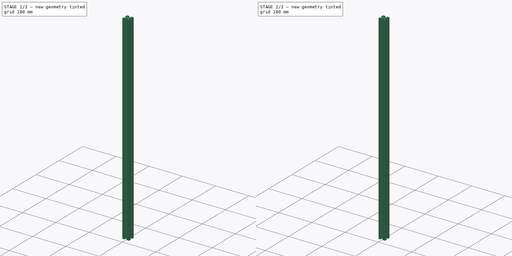
[diagram: build sequence overview — one tinted view per stage of 2, left to right]
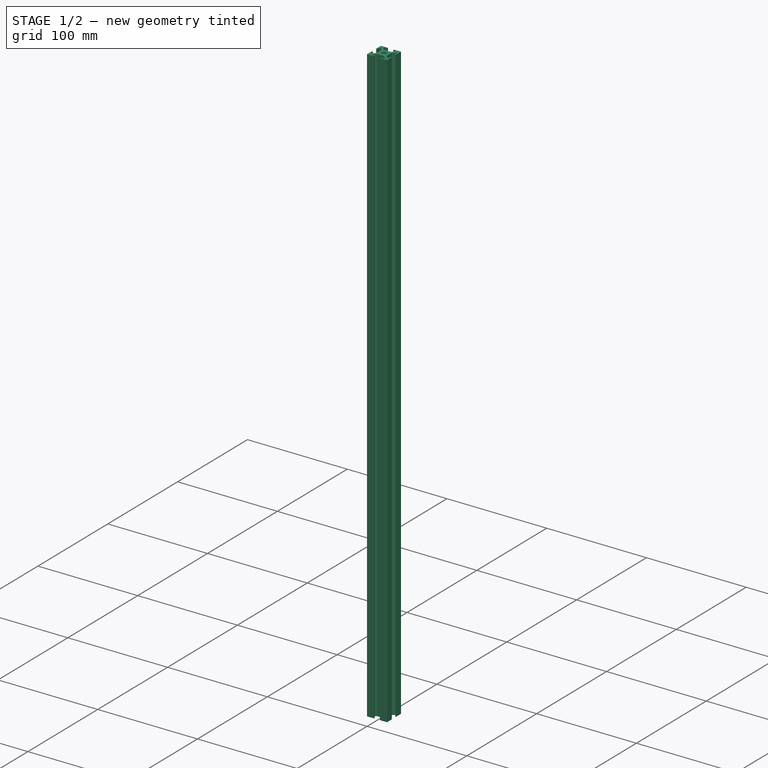
[diagram: stage 1 of 2 — iso view after this stage's code; geometry added in this stage tinted green]
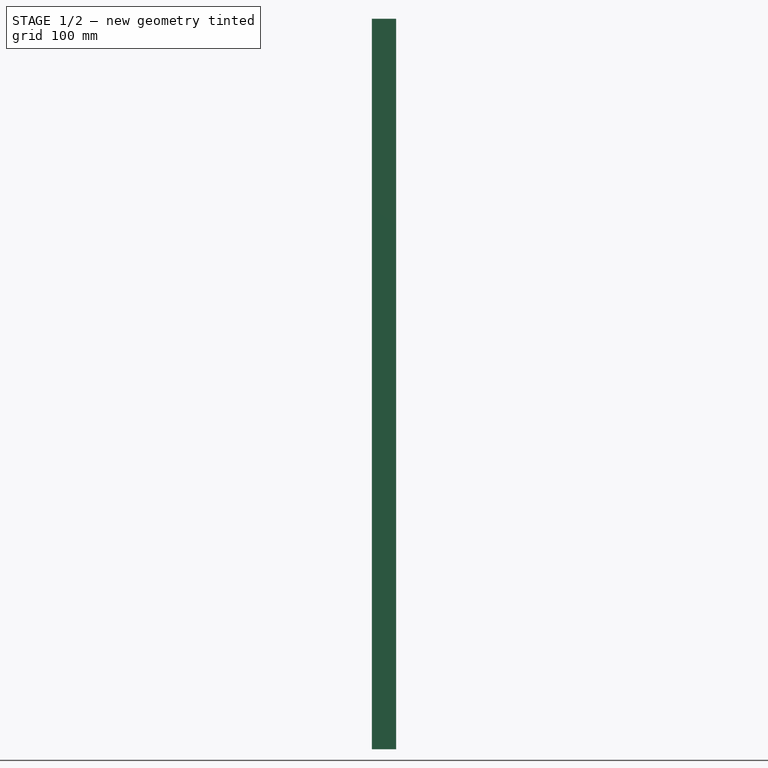
[diagram: stage 1 of 2 — front view after this stage's code; geometry added in this stage tinted green]
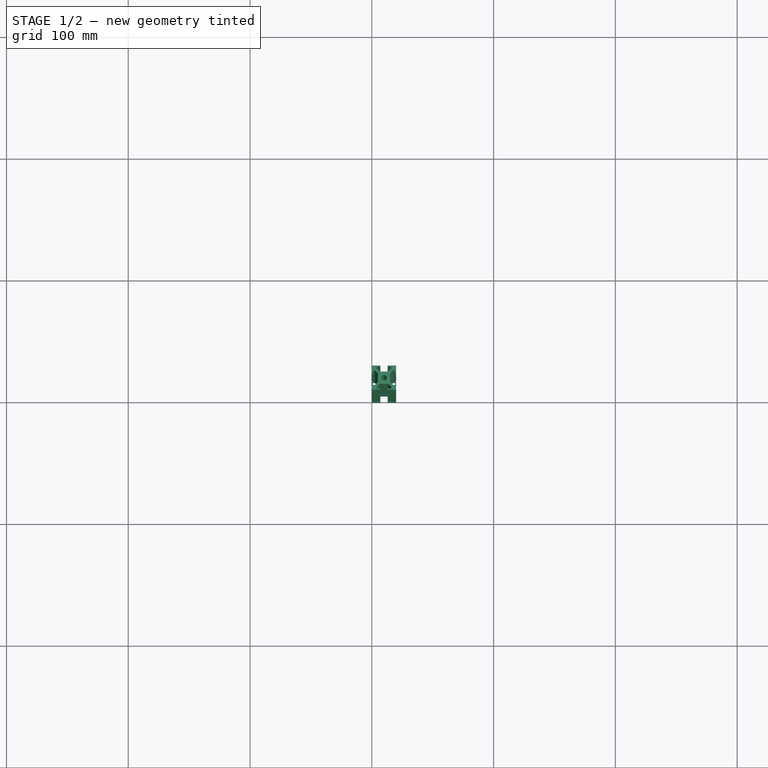
[diagram: stage 1 of 2 — top view after this stage's code; geometry added in this stage tinted green]
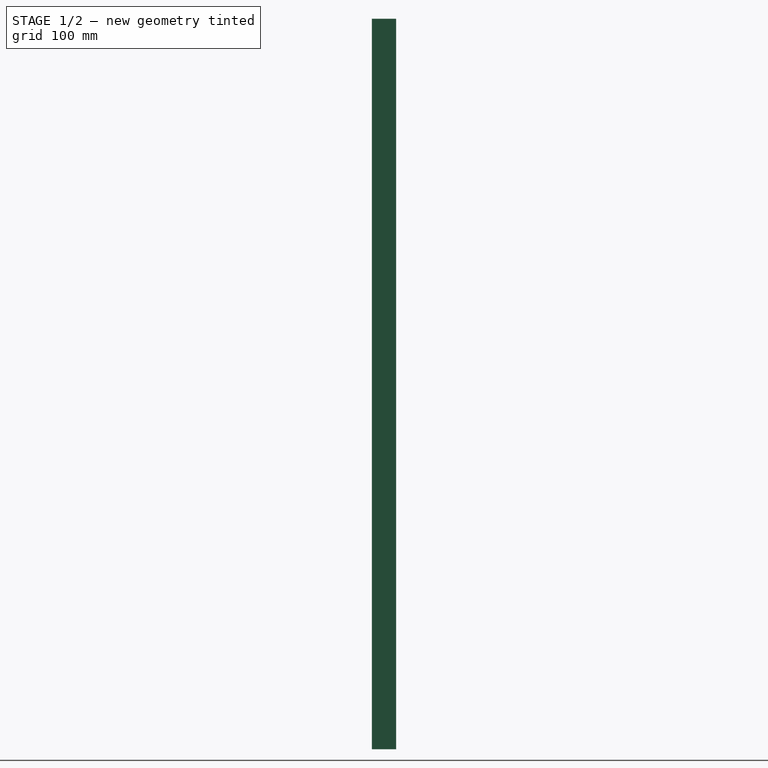
[diagram: stage 1 of 2 — right view after this stage's code; geometry added in this stage tinted green]
FCSTD DOCUMENT  (FreeCAD 0.15R4477 (Git))
Label: tslot20x20x600
License: CC-BY 3.0
LicenseURL: http://creativecommons.org/licenses/by/3.0/
objects: Sketcher::SketchObject×1, PartDesign::Pad×1, PartDesign::Fillet×1
note: 4 computed .brp shape members not serialized (recipe doc carries the construction recipe); baked Part::Feature solids carry a one-line shape summary decoded from their .brp

FEATURE [Sketcher::SketchObject] Sketch
  Placement = pos=(0,0,0) rot=(1,0,0;3.14159rad)
  sketch-geometry (47):
    g0: LineSegment StartX=7 StartY=0 StartZ=0 EndX=7 EndY=-1 EndZ=0
    g1: LineSegment StartX=7 StartY=-1 StartZ=0 EndX=4 EndY=-1 EndZ=0
    g2: LineSegment StartX=4 StartY=-1 StartZ=0 EndX=4 EndY=-2.5 EndZ=0
    g3: LineSegment StartX=4 StartY=-2.5 StartZ=0 EndX=6.5 EndY=-5 EndZ=0
    g4: LineSegment StartX=6.5 StartY=-5 StartZ=0 EndX=13.5 EndY=-5 EndZ=0
    g5: LineSegment StartX=13.5 StartY=-5 StartZ=0 EndX=16 EndY=-2.5 EndZ=0
    g6: LineSegment StartX=16 StartY=-2.5 StartZ=0 EndX=16 EndY=-1 EndZ=0
    g7: LineSegment StartX=16 StartY=-1 StartZ=0 EndX=13 EndY=-1 EndZ=0
    g8: LineSegment StartX=13 StartY=-1 StartZ=0 EndX=13 EndY=0 EndZ=0
    g9: LineSegment [constr] StartX=0 StartY=0 StartZ=0 EndX=20 EndY=-20 EndZ=0
    g10: LineSegment StartX=7 StartY=-20 StartZ=0 EndX=7 EndY=-19 EndZ=0
    g11: LineSegment StartX=7 StartY=-19 StartZ=0 EndX=4 EndY=-19 EndZ=0
    g12: LineSegment StartX=4 StartY=-19 StartZ=0 EndX=4 EndY=-17.5 EndZ=0
    g13: LineSegment StartX=4 StartY=-17.5 StartZ=0 EndX=6.5 EndY=-15 EndZ=0
    g14: LineSegment StartX=6.5 StartY=-15 StartZ=0 EndX=13.5 EndY=-15 EndZ=0
    g15: LineSegment StartX=13.5 StartY=-15 StartZ=0 EndX=16 EndY=-17.5 EndZ=0
    g16: LineSegment StartX=16 StartY=-17.5 StartZ=0 EndX=16 EndY=-19 EndZ=0
    g17: LineSegment StartX=16 StartY=-19 StartZ=0 EndX=13 EndY=-19 EndZ=0
    g18: LineSegment StartX=13 StartY=-19 StartZ=0 EndX=13 EndY=-20 EndZ=0
    g19: LineSegment StartX=20 StartY=-13 StartZ=0 EndX=19 EndY=-13 EndZ=0
    g20: LineSegment StartX=19 StartY=-13 StartZ=0 EndX=19 EndY=-16 EndZ=0
    g21: LineSegment StartX=19 StartY=-16 StartZ=0 EndX=17.5 EndY=-16 EndZ=0
    g22: LineSegment StartX=17.5 StartY=-16 StartZ=0 EndX=15 EndY=-13.5 EndZ=0
    g23: LineSegment StartX=15 StartY=-13.5 StartZ=0 EndX=15 EndY=-6.5 EndZ=0
    g24: LineSegment StartX=15 StartY=-6.5 StartZ=0 EndX=17.5 EndY=-4 EndZ=0
    g25: LineSegment StartX=17.5 StartY=-4 StartZ=0 EndX=19 EndY=-4 EndZ=0
    g26: LineSegment StartX=19 StartY=-4 StartZ=0 EndX=19 EndY=-7 EndZ=0
    g27: LineSegment StartX=19 StartY=-7 StartZ=0 EndX=20 EndY=-7 EndZ=0
    g28: LineSegment StartX=0 StartY=-7 StartZ=0 EndX=1 EndY=-7 EndZ=0
    g29: LineSegment StartX=1 StartY=-7 StartZ=0 EndX=1 EndY=-4 EndZ=0
    g30: LineSegment StartX=1 StartY=-4 StartZ=0 EndX=2.5 EndY=-4 EndZ=0
    g31: LineSegment StartX=2.5 StartY=-4 StartZ=0 EndX=5 EndY=-6.5 EndZ=0
    g32: LineSegment StartX=5 StartY=-6.5 StartZ=0 EndX=5 EndY=-13.5 EndZ=0
    g33: LineSegment StartX=5 StartY=-13.5 StartZ=0 EndX=2.5 EndY=-16 EndZ=0
    g34: LineSegment StartX=2.5 StartY=-16 StartZ=0 EndX=1 EndY=-16 EndZ=0
    g35: LineSegment StartX=1 StartY=-16 StartZ=0 EndX=1 EndY=-13 EndZ=0
    g36: LineSegment StartX=1 StartY=-13 StartZ=0 EndX=0 EndY=-13 EndZ=0
    g37: LineSegment StartX=13 StartY=0 StartZ=0 EndX=20 EndY=0 EndZ=0
    g38: LineSegment StartX=20 StartY=0 StartZ=0 EndX=20 EndY=-7 EndZ=0
    g39: LineSegment StartX=20 StartY=-13 StartZ=0 EndX=20 EndY=-20 EndZ=0
    g40: LineSegment StartX=20 StartY=-20 StartZ=0 EndX=13 EndY=-20 EndZ=0
    g41: LineSegment StartX=7 StartY=-20 StartZ=0 EndX=0 EndY=-20 EndZ=0
    g42: LineSegment StartX=0 StartY=-20 StartZ=0 EndX=0 EndY=-13 EndZ=0
    g43: LineSegment StartX=0 StartY=-7 StartZ=0 EndX=0 EndY=0 EndZ=0
    g44: LineSegment StartX=0 StartY=0 StartZ=0 EndX=7 EndY=0 EndZ=0
    g45: LineSegment [constr] StartX=0 StartY=-20 StartZ=0 EndX=20 EndY=0 EndZ=0
    g46: Circle CenterX=10 CenterY=-10 CenterZ=0 NormalX=0 NormalY=0 NormalZ=1 Radius=2.25
  constraints (140):
    c: Coincident(g0,g1)
    c: Horizontal(g1)
    c: Coincident(g1,g2)
    c: Coincident(g2,g3)
    c: Coincident(g3,g4)
    c: Horizontal(g4)
    c: Coincident(g4,g5)
    c: Coincident(g5,g6)
    c: Vertical(g6)
    c: Coincident(g6,g7)
    c: Coincident(g7,g8)
    c: Vertical(g8)
    c: PointOnObject(g8,g-1)
    c: Vertical(g0)
    c: Vertical(g2)
    c: Horizontal(g7)
    c: DistanceY(g0) = -1
    c: Angle(g4,g3) = 2.35619
    c: DistanceY(g2) = -1.5
    c: DistanceX(g1) = -3
    c: DistanceX(g-1,g2) = 4
    c: DistanceY(g0,g3) = -4
    c: Coincident(g9,g-1)
    c: DistanceX(g9) = 20
    c: Coincident(g10,g11)
    c: Coincident(g11,g12)
    c: Coincident(g12,g13)
    c: Coincident(g13,g14)
    c: Horizontal(g14)
    c: Coincident(g14,g15)
    c: Coincident(g15,g16)
    c: Vertical(g16)
    c: Coincident(g16,g17)
    c: Horizontal(g17)
    c: Coincident(g17,g18)
    c: Horizontal(g11)
    c: Vertical(g12)
    c: Vertical(g18)
    c: Vertical(g10)
    c: Coincident(g19,g20)
    c: Vertical(g20)
    c: Coincident(g20,g21)
    c: Coincident(g21,g22)
    c: Coincident(g22,g23)
    c: Vertical(g23)
    c: Coincident(g23,g24)
    c: Coincident(g24,g25)
    c: Horizontal(g25)
    c: Coincident(g25,g26)
    c: Vertical(g26)
    c: Coincident(g26,g27)
    c: Horizontal(g27)
    c: Horizontal(g19)
    c: Horizontal(g21)
    c: Coincident(g28,g29)
    c: Vertical(g29)
    c: Coincident(g29,g30)
    c: Horizontal(g30)
    c: Coincident(g30,g31)
    c: Coincident(g31,g32)
    c: Vertical(g32)
    c: Coincident(g32,g33)
    c: Coincident(g33,g34)
    c: Horizontal(g34)
    c: Coincident(g34,g35)
    c: Coincident(g35,g36)
    c: Horizontal(g36)
    c: Vertical(g35)
    c: Coincident(g37,g8)
    c: Coincident(g38,g37)
    c: Coincident(g38,g27)
    c: Vertical(g38)
    c: Coincident(g19,g39)
    c: Coincident(g39,g9)
    c: Vertical(g39)
    c: Coincident(g39,g40)
    c: Coincident(g40,g18)
    c: Coincident(g10,g41)
    c: Horizontal(g41)
    c: Coincident(g41,g42)
    c: Coincident(g42,g36)
    c: Vertical(g42)
    c: Coincident(g28,g43)
    c: Coincident(g43,g-1)
    c: Vertical(g43)
    c: Coincident(g43,g44)
    c: Coincident(g44,g0)
    c: Horizontal(g44)
    c: Horizontal(g37)
    c: Horizontal(g40)
    c: Horizontal(g28)
    c: Equal(g8,g0)
    c: Equal(g0,g28)
    c: Equal(g28,g36)
    c: Equal(g36,g10)
    c: Equal(g10,g18)
    c: Equal(g18,g19)
    c: Equal(g19,g27)
    c: Equal(g37,g38)
    c: Equal(g38,g39)
    c: Equal(g39,g44)
    c: Equal(g44,g43)
    c: Equal(g43,g42)
    c: Equal(g42,g41)
    c: Equal(g41,g40)
    c: Equal(g26,g7)
    c: Equal(g7,g1)
    c: Equal(g1,g29)
    c: Equal(g29,g35)
    c: Equal(g35,g11)
    c: Equal(g11,g17)
    c: Equal(g17,g20)
    c: Equal(g30,g34)
    c: Equal(g34,g12)
    c: Equal(g12,g16)
    c: Equal(g16,g21)
    c: Equal(g21,g25)
    c: Equal(g25,g6)
    c: Equal(g6,g2)
    c: Equal(g4,g32)
    c: Equal(g32,g23)
    c: Equal(g23,g14)
    c: Parallel(g24,g5)
    c: Parallel(g31,g3)
    c: Parallel(g33,g13)
    c: Parallel(g15,g22)
    c: Equal(g24,g5)
    c: Equal(g5,g3)
    c: Equal(g3,g31)
    c: Equal(g31,g33)
    c: Equal(g33,g13)
    c: Equal(g13,g15)
    c: Equal(g15,g22)
    c: Parallel(g5,g33)
    c: Parallel(g3,g22)
    c: Coincident(g45,g41)
    c: Coincident(g45,g37)
    c: PointOnObject(g46,g9)
    c: PointOnObject(g46,g45)
    c: Radius(g46) = 2.25
FEATURE [PartDesign::Pad] Pad
  Length = 600
  Length2 = 100
  Placement = pos=(0,0,0) rot=(1,0,0;3.14159rad)
  Sketch = -> Sketch
  Type = 0
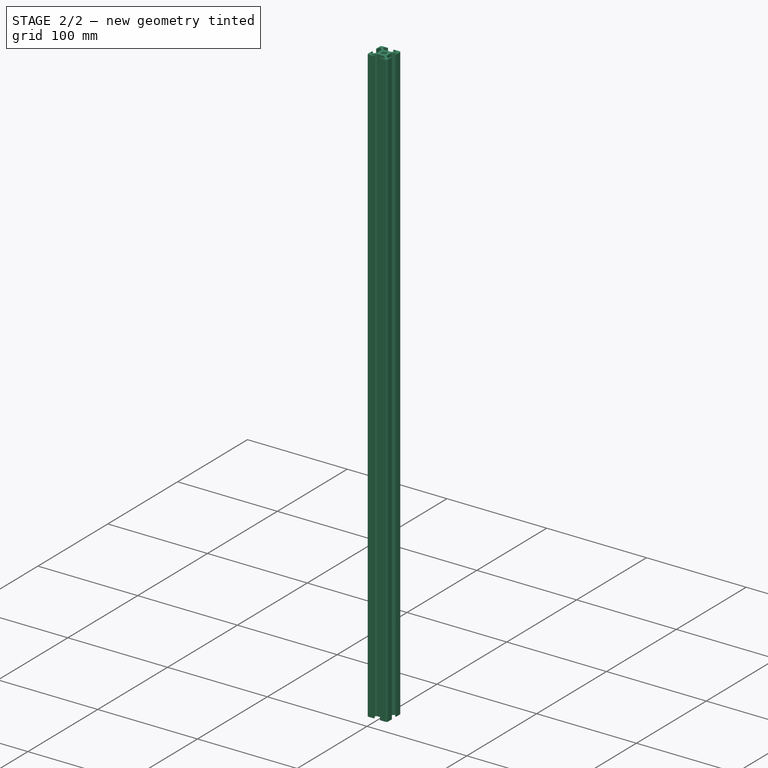
[diagram: stage 2 of 2 — iso view after this stage's code; geometry added in this stage tinted green]
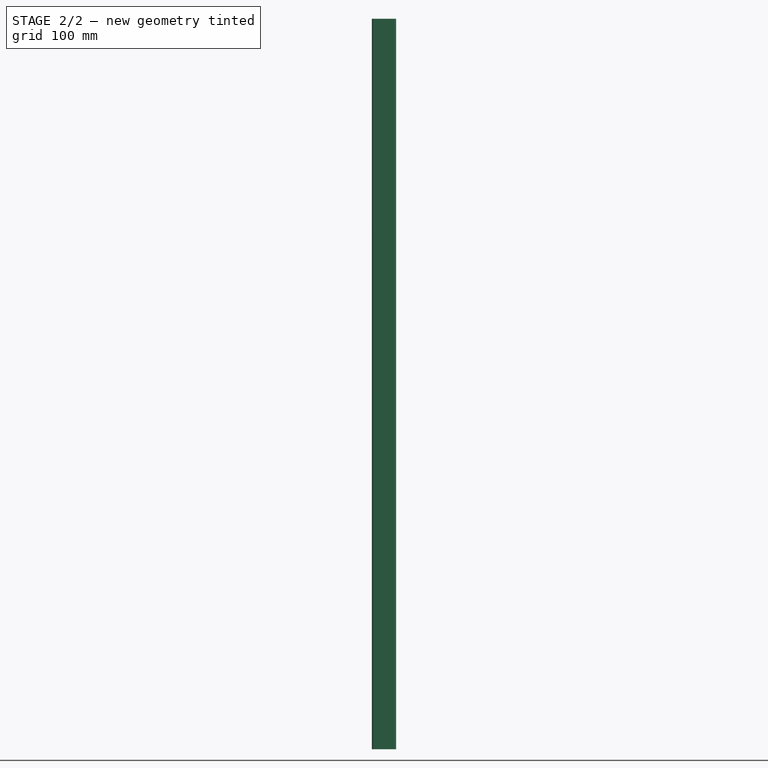
[diagram: stage 2 of 2 — front view after this stage's code; geometry added in this stage tinted green]
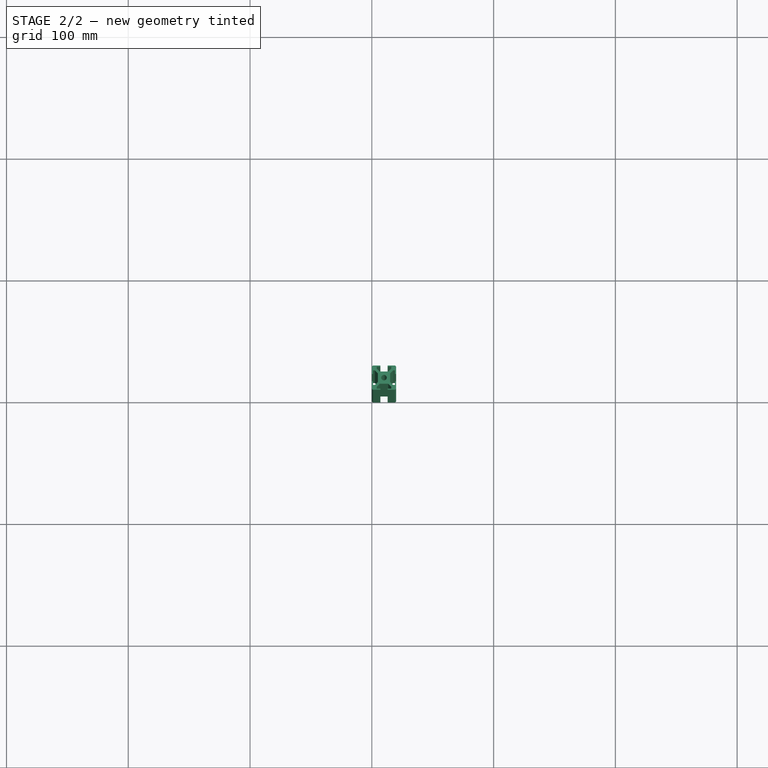
[diagram: stage 2 of 2 — top view after this stage's code; geometry added in this stage tinted green]
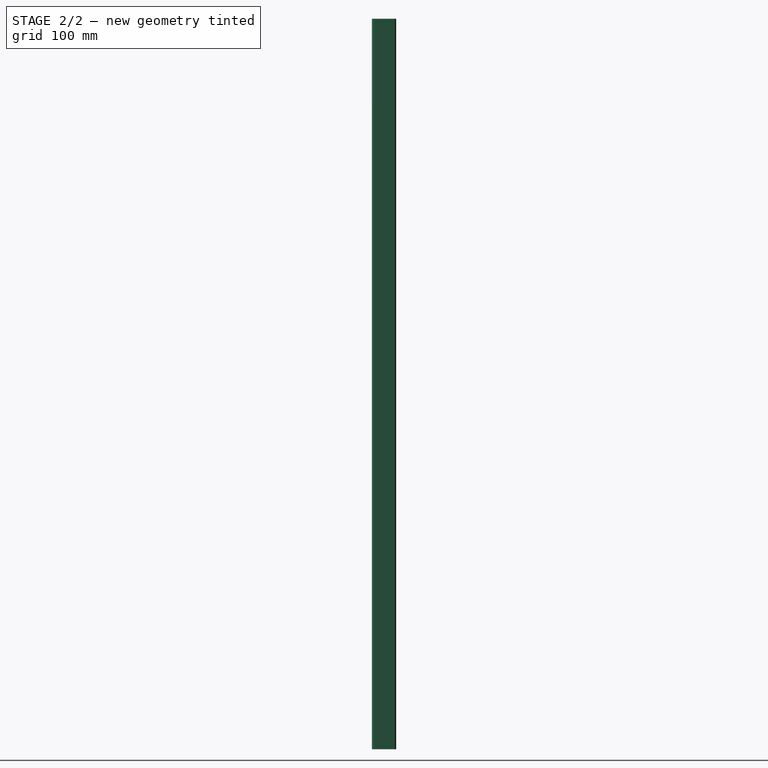
[diagram: stage 2 of 2 — right view after this stage's code; geometry added in this stage tinted green]
FEATURE [PartDesign::Fillet] Fillet  label="T slot extrusion 20x20x400.0"
  Base = -> Pad [Edge68,Edge35,Edge101,Edge2]
  Placement = pos=(0,0,0) rot=(1,0,0;3.14159rad)
  Radius = 1.5
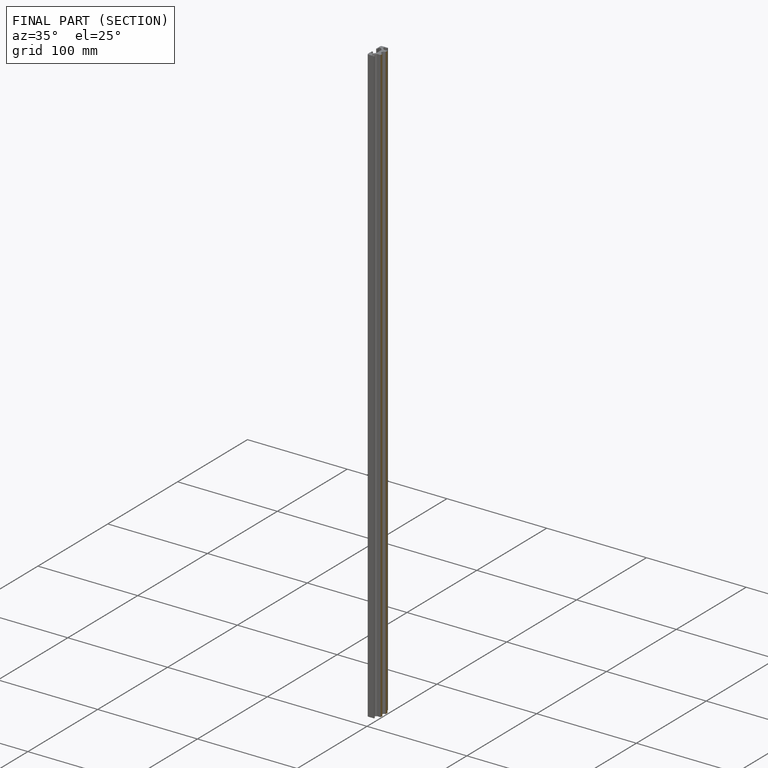
[diagram: finished part — half-section view (interior)]
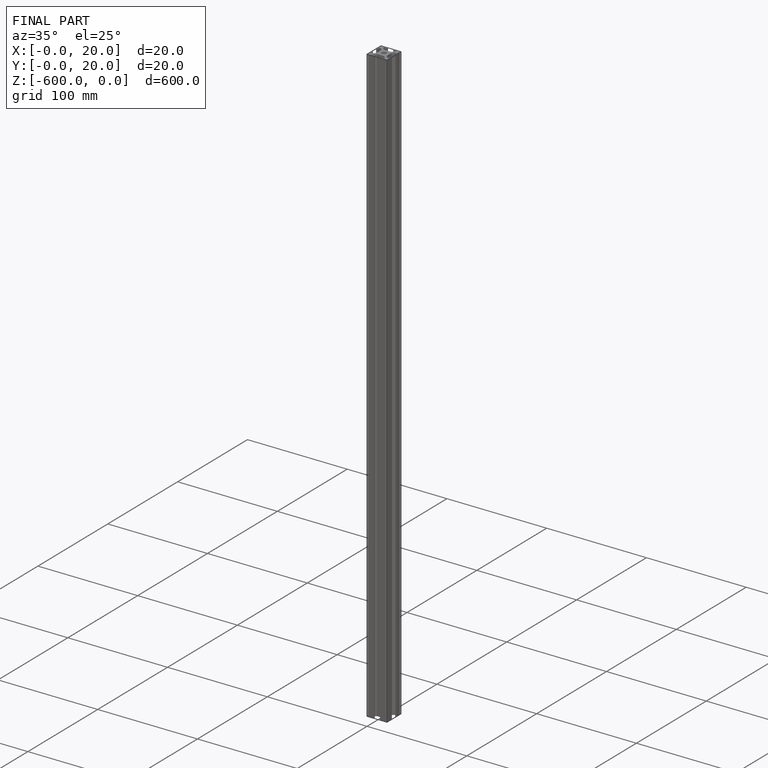
[diagram: finished part — iso view with bounding-box wireframe]
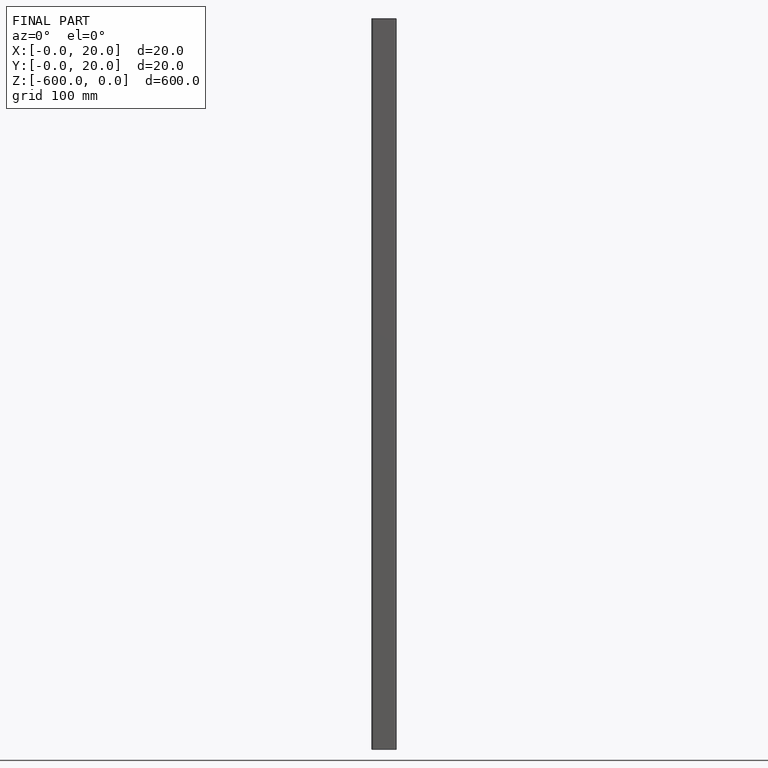
[diagram: finished part — front view with bounding-box wireframe]
